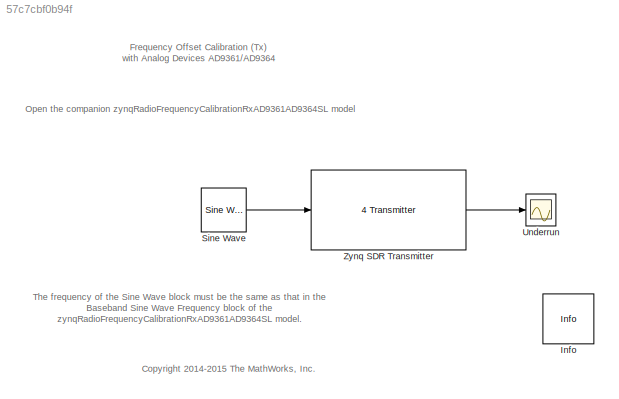
MODEL slx_57c7cbf0b94f
KIND model
CONFIG AbsTol = auto
CONFIG FixedStep = auto
CONFIG MaxStep = auto
CONFIG MinStep = auto
CONFIG RelTol = 1e-3
CONFIG SampleTimeConstraint = Unconstrained
CONFIG Solver = FixedStepDiscrete
CONFIG SolverMode = SingleTasking
CONFIG SolverName = FixedStepDiscrete
CONFIG StartTime = 0.0
CONFIG StopTime = inf
BLOCK [Reference] Info  REF=sdrzblksprivate/Info
  Ports = []
  SourceBlock = sdrzblksprivate/Info
  SourceType = Info
BLOCK [Reference] Sine Wave  REF=dspsrcs4/Sine Wave
  Ports = [0, 1]
  SourceBlock = dspsrcs4/Sine Wave
  SourceType = Sine Wave
BLOCK [Scope] Underrun
  Ports = [1]
  ScopeSpecificationString = Simulink.scopes.TimeScopeBlockCfg('CurrentConfiguration', extmgr.ConfigurationSet(extmgr.Configuration('Core','General UI',true),extmgr.Configuration('Core','Source UI',true),extmgr.Configuration('Sources','WiredSimulink',true,'DataLoggingSaveFormat','StructureWithTime','DataLoggingLimitDataPoints',true,'DataLoggingDecimation','1'),extmgr.Configuration('Visuals','Time Domain',true,'SerializedDispl...<+1556ch>
BLOCK [Reference] Zynq SDR Transmitter  REF=zc706fmc234_lib/ZC706 and 
FMCOMMS2//3//4 
Transmitter
  Ports = [1, 1]
  SourceBlock = zc706fmc234_lib/ZC706 and \nFMCOMMS2//3//4 \nTransmitter
  SourceType = comm.internal.SDRTxZC706FMC234SL
ANNOTATION (root): <copyright redacted>
ANNOTATION (root): Frequency Offset Calibration (Tx) with Analog Devices AD9361/AD9364
ANNOTATION (root): Open the companion zynqRadioFrequencyCalibrationRxAD9361AD9364SL model
ANNOTATION (root): The frequency of the Sine Wave block must be the same as that in the Baseband Sine Wave Frequency block of the zynqRadioFrequencyCalibrationRxAD9361AD9364SL model.
LINE Sine Wave:1 -> Zynq SDR Transmitter:1
LINE Zynq SDR Transmitter:1 -> Underrun:1
